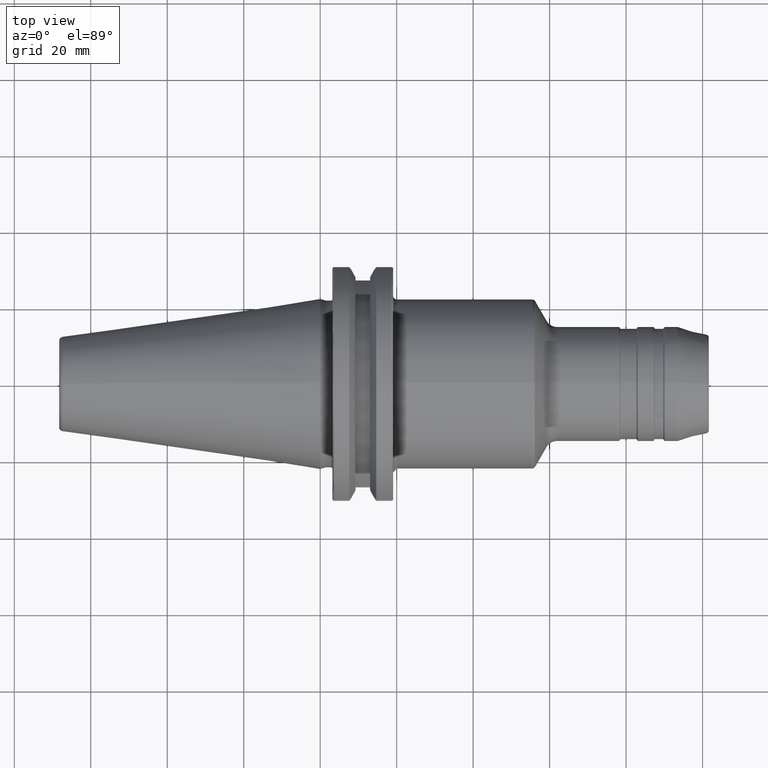
[diagram: clean part render]
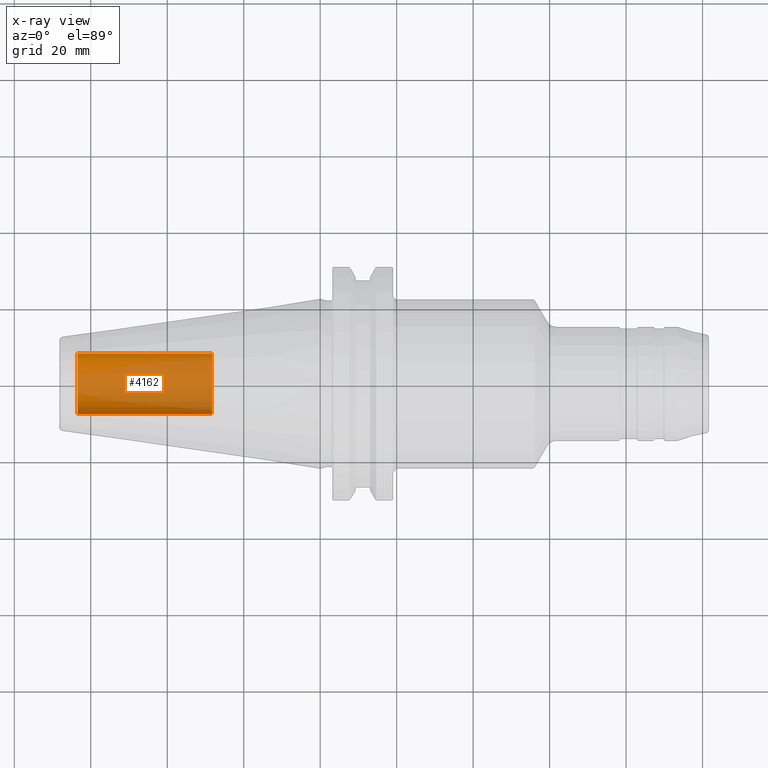
[diagram: x-ray — body ghosted, one internal face saturated and labeled with its STEP entity id]
A machine part, top view, then the same camera in x-ray: the body is ghosted and one INTERNAL B-rep face — a face not visible from any outside direction — is saturated and labeled: STEP entity #4162.
In plain terms, the highlighted cylindrical surface (edge-blend (fillet) strip) has radius 7.9375 mm, axis along (-1, 0, 0).
Its self-contained STEP definition (entity closure, byte-faithful):
#4097=CARTESIAN_POINT('',(-6.345E1,0.E0,0.E0));
#4098=DIRECTION('',(1.E0,0.E0,0.E0));
#4099=DIRECTION('',(0.E0,-1.E0,0.E0));
#4100=AXIS2_PLACEMENT_3D('',#4097,#4098,#4099);
#4107=DIRECTION('',(1.E0,0.E0,0.E0));
#4108=VECTOR('',#4107,3.52E1);
#4109=CARTESIAN_POINT('',(-6.345E1,-7.9375E0,0.E0));
#4110=LINE('',#4109,#4108);
#4111=DIRECTION('',(1.E0,0.E0,0.E0));
#4112=VECTOR('',#4111,3.52E1);
#4113=CARTESIAN_POINT('',(-6.345E1,7.9375E0,0.E0));
#4114=LINE('',#4113,#4112);
#4120=CARTESIAN_POINT('',(-2.825E1,0.E0,0.E0));
#4121=DIRECTION('',(-1.E0,0.E0,0.E0));
#4122=DIRECTION('',(0.E0,1.E0,0.E0));
#4123=AXIS2_PLACEMENT_3D('',#4120,#4121,#4122);
#4135=CARTESIAN_POINT('',(-2.825E1,7.9375E0,0.E0));
#4136=CARTESIAN_POINT('',(-2.825E1,-7.9375E0,0.E0));
#4137=VERTEX_POINT('',#4135);
#4138=VERTEX_POINT('',#4136);
#4139=CARTESIAN_POINT('',(-6.345E1,7.9375E0,0.E0));
#4140=CARTESIAN_POINT('',(-6.345E1,-7.9375E0,0.E0));
#4141=VERTEX_POINT('',#4139);
#4142=VERTEX_POINT('',#4140);
#4147=CARTESIAN_POINT('',(-1.674377256037E1,0.E0,0.E0));
#4148=DIRECTION('',(-1.E0,0.E0,0.E0));
#4149=DIRECTION('',(0.E0,1.E0,0.E0));
#4150=AXIS2_PLACEMENT_3D('',#4147,#4148,#4149);
#4151=CYLINDRICAL_SURFACE('',#4150,7.9375E0);
#4153=ORIENTED_EDGE('',*,*,#4152,.T.);
#4155=ORIENTED_EDGE('',*,*,#4154,.T.);
#4157=ORIENTED_EDGE('',*,*,#4156,.T.);
#4159=ORIENTED_EDGE('',*,*,#4158,.F.);
#4160=EDGE_LOOP('',(#4153,#4155,#4157,#4159));
#4161=FACE_OUTER_BOUND('',#4160,.F.);
#4162=ADVANCED_FACE('',(#4161),#4151,.F.);
#4101=CIRCLE('',#4100,7.9375E0);
#4124=CIRCLE('',#4123,7.9375E0);
#4152=EDGE_CURVE('',#4142,#4141,#4101,.T.);
#4154=EDGE_CURVE('',#4141,#4137,#4114,.T.);
#4156=EDGE_CURVE('',#4137,#4138,#4124,.T.);
#4158=EDGE_CURVE('',#4142,#4138,#4110,.T.);